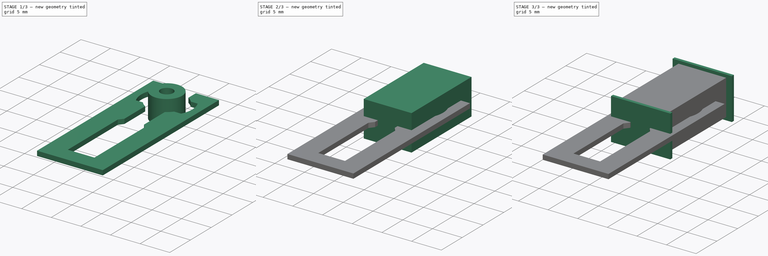
[diagram: build sequence overview — one tinted view per stage of 3, left to right]
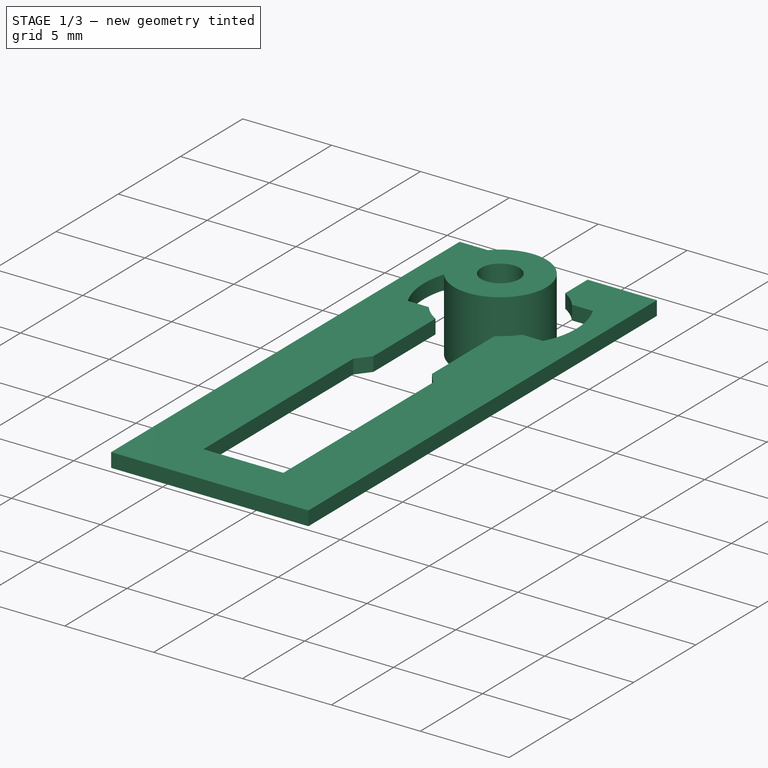
[diagram: stage 1 of 3 — iso view after this stage's code; geometry added in this stage tinted green]
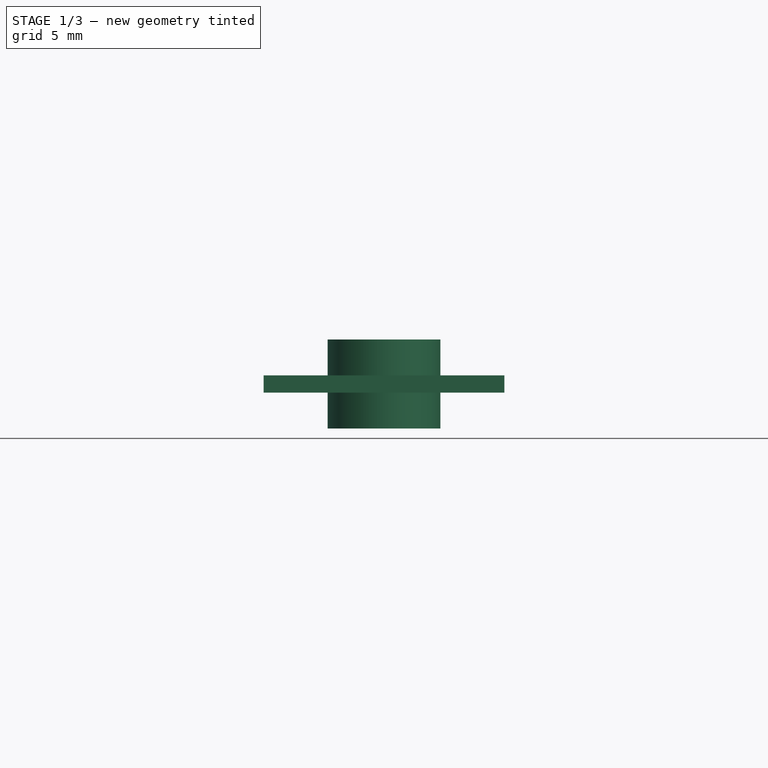
[diagram: stage 1 of 3 — front view after this stage's code; geometry added in this stage tinted green]
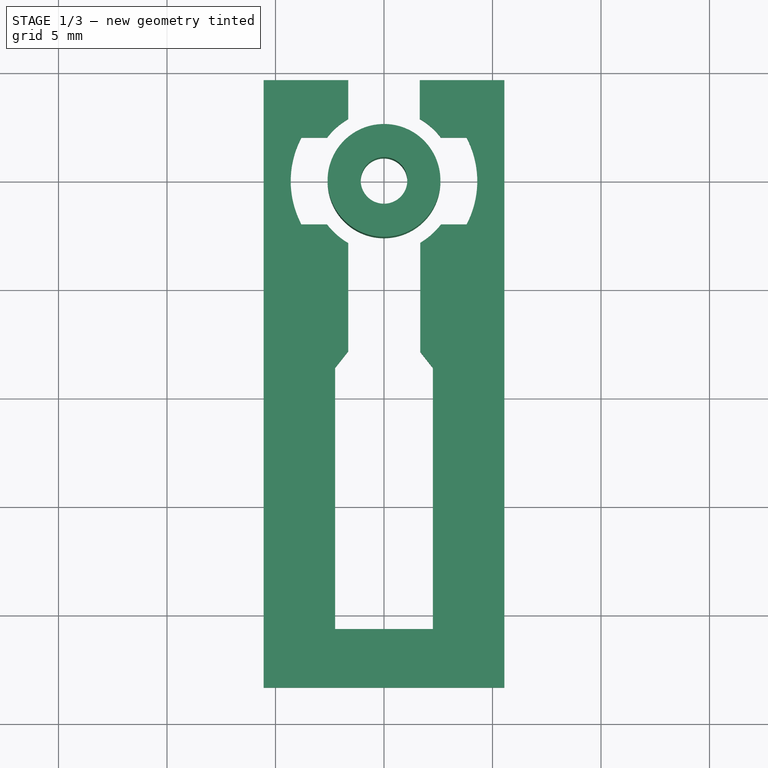
[diagram: stage 1 of 3 — top view after this stage's code; geometry added in this stage tinted green]
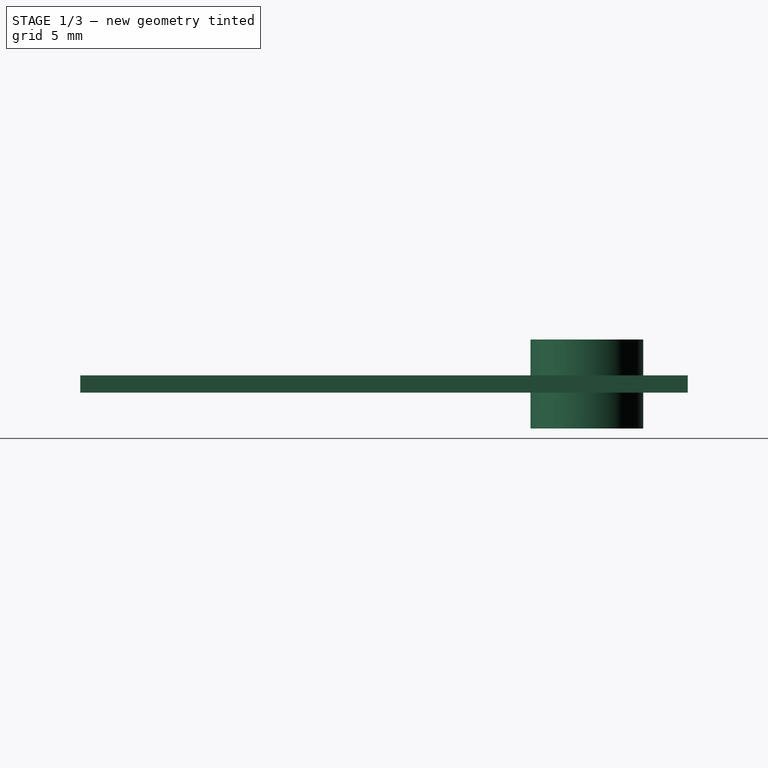
[diagram: stage 1 of 3 — right view after this stage's code; geometry added in this stage tinted green]
FCSTD DOCUMENT  (FreeCAD 0.19R24276 (Git))
Label: Clock Parts_Model_A
License: All rights reserved
LicenseURL: http://en.wikipedia.org/wiki/All_rights_reserved
objects: Sketcher::SketchObject×6, PartDesign::Pad×5, PartDesign::Body×3, Image::ImagePlane×1, App::Part×1
note: 19 computed .brp shape members not serialized (recipe doc carries the construction recipe); baked Part::Feature solids carry a one-line shape summary decoded from their .brp

FEATURE [PartDesign::Body] Body001  label="Coil"
  Group = -> [Sketch001,Pad001,Sketch002,Pad002,Sketch003,Pad003]
  Origin = -> Origin003
  Placement = pos=(3.5,-13,0) rot=(0,0,1;0rad)
  Tip = -> Pad003
FEATURE [Sketcher::SketchObject] Sketch004
  FullyConstrained = true
  MapMode = 5
  Support = -> [XY_Plane005]
  sketch-geometry (2):
    g0: Circle CenterX=0 CenterY=0 CenterZ=0 NormalX=0 NormalY=0 NormalZ=1 AngleXU=0 Radius=1.075
    g1: Circle CenterX=0 CenterY=0 CenterZ=0 NormalX=0 NormalY=0 NormalZ=1 AngleXU=0 Radius=2.6
  constraints (4):
    c: Coincident(g0,g-1)
    c: Coincident(g1,g0)
    c: Radius(g1) = 2.6
    c: Radius(g0) = 1.075
FEATURE [PartDesign::Pad] Pad
  Direction = (1,1,1)
  Length = 0.8
  Length2 = 100
  Midplane = true
  Profile = -> Sketch
  Type = 0
FEATURE [PartDesign::Body] Body  label="Plate"
  Group = -> [Sketch,Pad]
  Origin = -> Origin001
  Tip = -> Pad
FEATURE [PartDesign::Pad] Pad004
  Direction = (1,1,1)
  Length = 4.1
  Length2 = 100
  Midplane = true
  Profile = -> Sketch004
  Type = 0
FEATURE [PartDesign::Body] Body002  label="Magnet"
  Group = -> [Sketch004,Pad004]
  Origin = -> Origin005
  Tip = -> Pad004
FEATURE [App::Part] Part  label="Clock Parts"
  Group = -> [Body,Body001,Body002]
  Origin = -> Origin
FEATURE [Sketcher::SketchObject] Sketch011  label="Actuator_DXF"
  FullyConstrained = false
  sketch-geometry (36):
    g0: ArcOfCircle CenterX=-1.255 CenterY=9.45 CenterZ=0 NormalX=0 NormalY=0 NormalZ=1 AngleXU=0 Radius=3.25 StartAngle=3.80447 EndAngle=4.17988
    g1: ArcOfCircle CenterX=-1.255 CenterY=9.45 CenterZ=0 NormalX=0 NormalY=0 NormalZ=1 AngleXU=0 Radius=3 StartAngle=2.15316 EndAngle=2.41186
    g2: LineSegment StartX=-2.905 StartY=14.05 StartZ=0 EndX=-2.905 EndY=11.9555 EndZ=0
    g3: LineSegment StartX=-3.49107 StartY=11.45 StartZ=0 EndX=-5.06157 EndY=11.45 EndZ=0
    g4: LineSegment StartX=0.395 StartY=14.05 StartZ=0 EndX=0.395 EndY=12.25 EndZ=0
    g5: ArcOfCircle CenterX=-1.255 CenterY=9.45 CenterZ=0 NormalX=0 NormalY=0 NormalZ=1 AngleXU=0 Radius=4.3 StartAngle=2.65783 EndAngle=3.62536
    g6: LineSegment StartX=-5.06157 StartY=7.45 StartZ=0 EndX=-3.81674 EndY=7.45 EndZ=0
    g7: LineSegment StartX=-2.905 StartY=1.32754 StartZ=0 EndX=-3.405 EndY=0.716888 EndZ=0
    g8: LineSegment StartX=-3.405 StartY=0.716888 StartZ=0 EndX=-3.405 EndY=-11.161 EndZ=0
    g9: LineSegment StartX=-3.405 StartY=-11.161 StartZ=0 EndX=0.895 EndY=-11.161 EndZ=0
    g10: LineSegment StartX=0.895 StartY=-11.161 StartZ=0 EndX=0.895 EndY=0.716888 EndZ=0
    g11: LineSegment StartX=0.895 StartY=0.716888 StartZ=0 EndX=0.395 EndY=1.32754 EndZ=0
    g12: LineSegment StartX=0.395 StartY=1.32754 StartZ=0 EndX=0.395 EndY=6.94451 EndZ=0
    g13: LineSegment StartX=0.981068 StartY=7.45 StartZ=0 EndX=2.55157 EndY=7.45 EndZ=0
    g14: LineSegment StartX=0.395 StartY=14.05 StartZ=0 EndX=4.295 EndY=14.05 EndZ=0
    g15: LineSegment StartX=4.295 StartY=14.05 StartZ=0 EndX=4.295 EndY=-13.8452 EndZ=0
    g16: LineSegment StartX=4.295 StartY=-13.8452 StartZ=0 EndX=-6.805 EndY=-13.8452 EndZ=0
    g17: LineSegment StartX=-6.805 StartY=-13.8452 StartZ=0 EndX=-6.805 EndY=14.05 EndZ=0
    g18: LineSegment StartX=-6.805 StartY=14.05 StartZ=0 EndX=-2.905 EndY=14.05 EndZ=0
    g19: ArcOfCircle CenterX=-1.255 CenterY=9.45 CenterZ=0 NormalX=0 NormalY=0 NormalZ=1 AngleXU=0 Radius=3.25 StartAngle=0.662874 EndAngle=1.03829
    g20: ArcOfCircle CenterX=-1.255 CenterY=9.45 CenterZ=0 NormalX=0 NormalY=0 NormalZ=1 AngleXU=0 Radius=3 StartAngle=5.29475 EndAngle=5.55346
    g21: LineSegment StartX=1.30674 StartY=11.45 StartZ=0 EndX=2.55157 EndY=11.45 EndZ=0
    g22: ArcOfCircle CenterX=-1.255 CenterY=9.45 CenterZ=0 NormalX=0 NormalY=0 NormalZ=1 AngleXU=0 Radius=4.3 StartAngle=5.79942 EndAngle=6.76695
    g23: LineSegment StartX=-2.905 StartY=6.65 StartZ=0 EndX=-2.905 EndY=1.32754 EndZ=0
    g24: Circle CenterX=-1.255 CenterY=9.45 CenterZ=0 NormalX=0 NormalY=0 NormalZ=1 AngleXU=0 Radius=1.1
    g25: Circle CenterX=-1.255 CenterY=9.45 CenterZ=0 NormalX=0 NormalY=0 NormalZ=1 AngleXU=0 Radius=2.6
    g26: LineSegment StartX=4.75434 StartY=4.3 StartZ=0 EndX=6.75434 EndY=4.3 EndZ=0
    g27: LineSegment StartX=6.75434 StartY=4.3 StartZ=0 EndX=6.75434 EndY=-10 EndZ=0
    g28: LineSegment StartX=6.75434 StartY=-10 StartZ=0 EndX=4.75434 EndY=-10 EndZ=0
    g29: LineSegment StartX=4.75434 StartY=-10 StartZ=0 EndX=4.75434 EndY=4.3 EndZ=0
    g30: LineSegment StartX=0 StartY=4.3 StartZ=0 EndX=-2 EndY=4.3 EndZ=0
    g31: LineSegment StartX=-2 StartY=4.3 StartZ=0 EndX=-2 EndY=-10 EndZ=0
    g32: LineSegment StartX=-2 StartY=-10 StartZ=0 EndX=0 EndY=-10 EndZ=0
    g33: LineSegment StartX=0 StartY=-10 StartZ=0 EndX=0 EndY=4.3 EndZ=0
    g34: LineSegment StartX=-1.255 StartY=9.45 StartZ=0 EndX=-5.03131 EndY=9.45 EndZ=0
    g35: LineSegment StartX=-1.255 StartY=9.45 StartZ=0 EndX=-1.255 EndY=5.79474 EndZ=0
  constraints (78):
    c: DistanceX(g0) = -1.255
    c: DistanceY(g0) = 9.45
    c: Radius(g0) = 3.25
    c: Coincident(g1,g0)
    c: Radius(g1) = 3
    c: Vertical(g2)
    c: Horizontal(g3)
    c: Vertical(g4)
    c: Coincident(g5,g0)
    c: Radius(g5) = 4.3
    c: Horizontal(g6)
    c: Coincident(g23,g7)
    c: Coincident(g7,g8)
    c: Vertical(g8)
    c: Coincident(g8,g9)
    c: Horizontal(g9)
    c: Coincident(g9,g10)
    c: Vertical(g10)
    c: Coincident(g10,g11)
    c: Coincident(g11,g12)
    c: Vertical(g12)
    c: Horizontal(g13)
    c: Coincident(g4,g14)
    c: Horizontal(g14)
    c: Coincident(g14,g15)
    c: Vertical(g15)
    c: Coincident(g15,g16)
    c: Horizontal(g16)
    c: Coincident(g16,g17)
    c: Vertical(g17)
    c: Coincident(g17,g18)
    c: Coincident(g18,g2)
    c: Horizontal(g18)
    c: Equal(g14,g18)
    c: DistanceX(g14,g14) = 3.9
    c: DistanceX(g9,g9) = 4.3
    c: Coincident(g3,g5)
    c: Equal(g0,g19)
    c: Coincident(g0,g19)
    c: Coincident(g21,g19)
    c: Coincident(g4,g19)
    c: Coincident(g2,g1)
    c: Coincident(g3,g1)
    c: Coincident(g6,g0)
    c: Coincident(g5,g6)
    c: Coincident(g13,g20)
    c: Coincident(g12,g20)
    c: Coincident(g23,g0)
    c: Coincident(g13,g22)
    c: Coincident(g22,g21)
    c: Coincident(g24,g0)
    c: Coincident(g25,g0)
    c: Radius(g25) = 2.6
    c: Radius(g24) = 1.1
    c: Coincident(g26,g27)
    c: Coincident(g27,g28)
    c: Coincident(g28,g29)
    c: Coincident(g29,g26)
    c: Horizontal(g26)
    c: Horizontal(g28)
    c: Vertical(g27)
    c: Vertical(g29)
    c: Coincident(g30,g31)
    c: Coincident(g31,g32)
    c: Coincident(g32,g33)
    c: Coincident(g33,g30)
    c: Horizontal(g30)
    c: Horizontal(g32)
    c: Vertical(g31)
    c: Vertical(g33)
    c: Equal(g26,g30)
    c: Equal(g27,g33)
    c: DistanceY(g-1,g26) = 4.3
    c: DistanceY(g-1,g30) = 4.3
    c: DistanceY(g27,g27) = 14.3
    c: DistanceX(g28,g28) = 2
    c: Horizontal(g34)
    c: Vertical(g35)
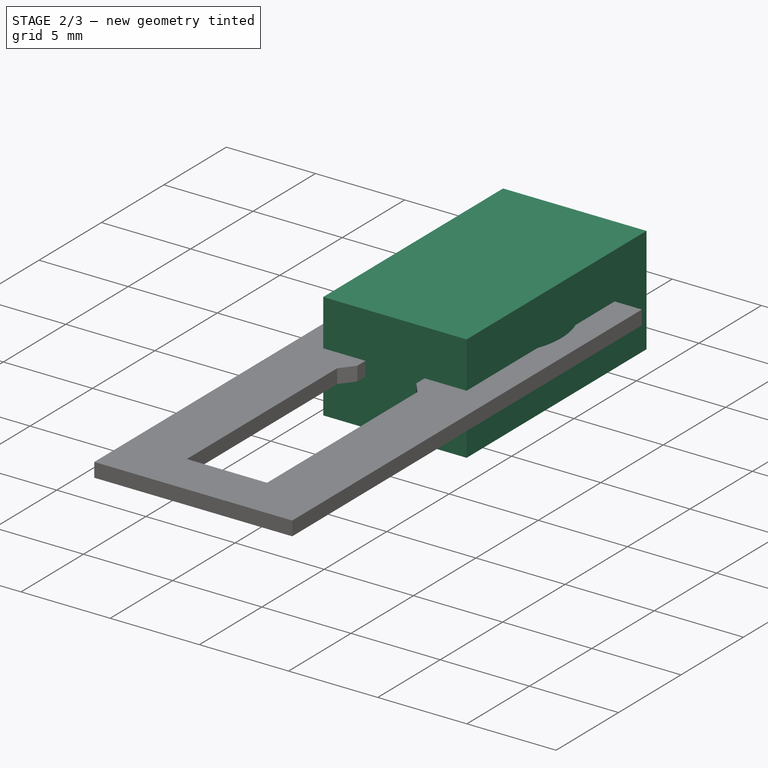
[diagram: stage 2 of 3 — iso view after this stage's code; geometry added in this stage tinted green]
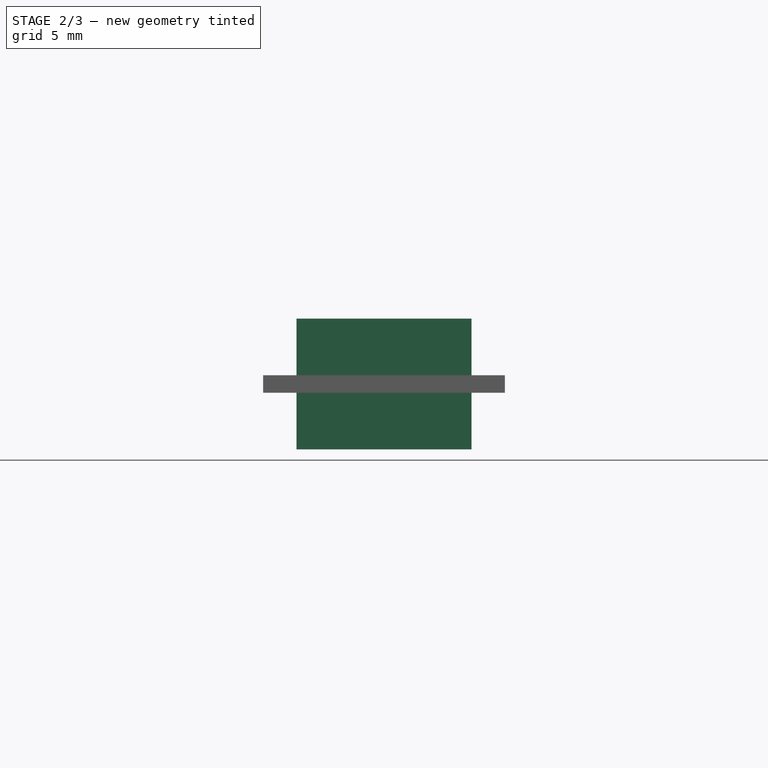
[diagram: stage 2 of 3 — front view after this stage's code; geometry added in this stage tinted green]
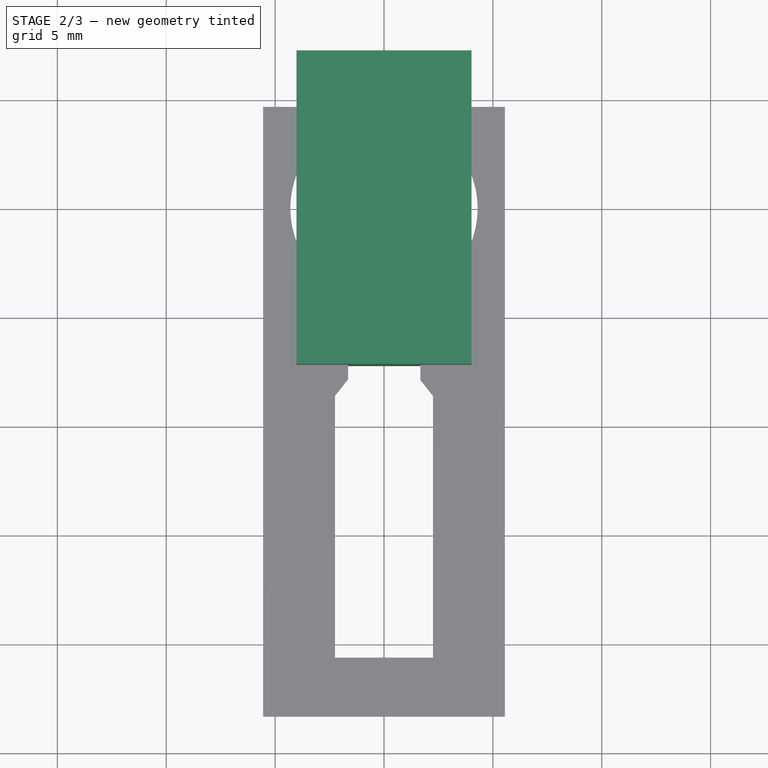
[diagram: stage 2 of 3 — top view after this stage's code; geometry added in this stage tinted green]
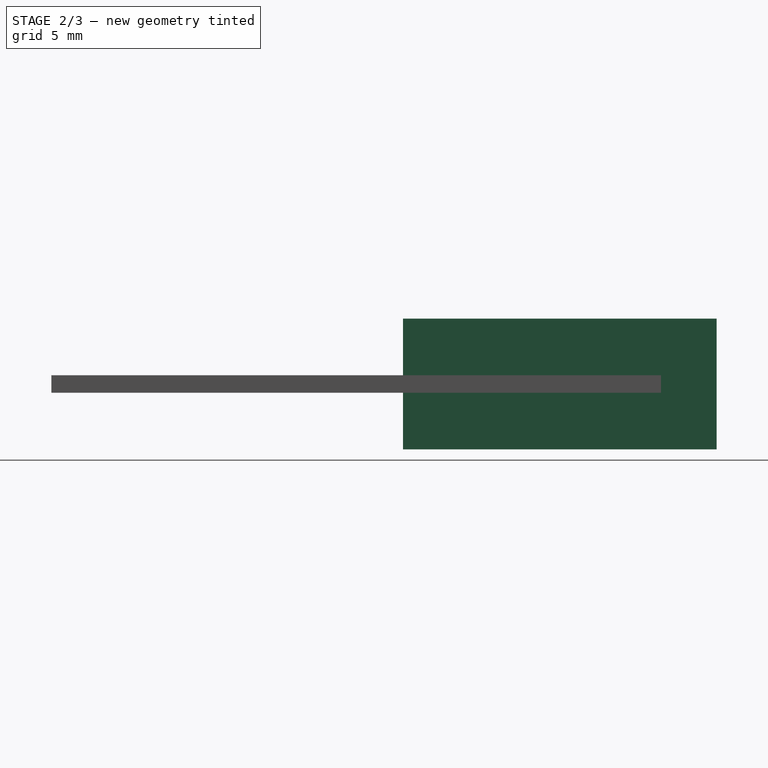
[diagram: stage 2 of 3 — right view after this stage's code; geometry added in this stage tinted green]
FEATURE [Sketcher::SketchObject] Sketch
  FullyConstrained = false
  MapMode = 5
  Support = -> [XY_Plane001]
  sketch-geometry (24):
    g0: LineSegment StartX=5.55 StartY=4.65 StartZ=0 EndX=5.55 EndY=-23.35 EndZ=0
    g1: LineSegment StartX=5.55 StartY=-23.35 StartZ=0 EndX=-5.55 EndY=-23.35 EndZ=0
    g2: LineSegment StartX=-5.55 StartY=-23.35 StartZ=0 EndX=-5.55 EndY=4.65 EndZ=0
    g3: LineSegment StartX=-5.55 StartY=4.65 StartZ=0 EndX=-1.65 EndY=4.65 EndZ=0
    g4: LineSegment StartX=-1.65 StartY=4.65 StartZ=0 EndX=-1.65 EndY=2.85788 EndZ=0
    g5: LineSegment StartX=-1.65 StartY=-7.8506 StartZ=0 EndX=-2.25 EndY=-8.61046 EndZ=0
    g6: LineSegment StartX=-2.25 StartY=-8.61046 StartZ=0 EndX=-2.25 EndY=-20.65 EndZ=0
    g7: LineSegment StartX=-2.25 StartY=-20.65 StartZ=0 EndX=2.25 EndY=-20.65 EndZ=0
    g8: LineSegment StartX=1.66888 StartY=-7.87451 StartZ=0 EndX=1.66888 EndY=-2.8469 EndZ=0
    g9: LineSegment StartX=1.65 StartY=4.65 StartZ=0 EndX=5.55 EndY=4.65 EndZ=0
    g10: ArcOfCircle CenterX=1.08e-13 CenterY=0 CenterZ=0 NormalX=0 NormalY=0 NormalZ=1 AngleXU=0 Radius=3.3 StartAngle=2.0944 EndAngle=2.49049
    g11: ArcOfCircle CenterX=1.08e-13 CenterY=0 CenterZ=0 NormalX=0 NormalY=0 NormalZ=1 AngleXU=0 Radius=4.3 StartAngle=2.65783 EndAngle=3.62536
    g12: LineSegment StartX=-3.80657 StartY=2 StartZ=0 EndX=-2.62488 EndY=2 EndZ=0
    g13: LineSegment StartX=-3.80657 StartY=-2 StartZ=0 EndX=-2.62488 EndY=-2 EndZ=0
    g14: LineSegment StartX=2.62488 StartY=2 StartZ=0 EndX=3.80488 EndY=2 EndZ=0
    g15: ArcOfCircle CenterX=1.08e-13 CenterY=0 CenterZ=0 NormalX=0 NormalY=0 NormalZ=1 AngleXU=0 Radius=3.3 StartAngle=3.79269 EndAngle=4.18879
    g16: ArcOfCircle CenterX=1.116e-13 CenterY=-4.3e-15 CenterZ=0 NormalX=0 NormalY=0 NormalZ=1 AngleXU=0 Radius=3.3 StartAngle=0.651099 EndAngle=1.0472
    g17: LineSegment StartX=2.62488 StartY=-2 StartZ=0 EndX=3.80657 EndY=-2 EndZ=0
    g18: ArcOfCircle CenterX=4.4e-15 CenterY=-0.00161011 CenterZ=0 NormalX=0 NormalY=0 NormalZ=1 AngleXU=0 Radius=4.29925 StartAngle=5.79975 EndAngle=6.76747
    g19: LineSegment StartX=1.65 StartY=2.85788 StartZ=0 EndX=1.65 EndY=4.65 EndZ=0
    g20: LineSegment StartX=-1.65 StartY=-2.85788 StartZ=0 EndX=-1.65 EndY=-7.8506 EndZ=0
    g21: ArcOfCircle CenterX=5.4e-14 CenterY=-1.08e-13 CenterZ=0 NormalX=0 NormalY=0 NormalZ=1 AngleXU=0 Radius=3.3 StartAngle=5.24261 EndAngle=5.63209
    g22: LineSegment StartX=2.25 StartY=-8.61046 StartZ=0 EndX=2.25 EndY=-20.65 EndZ=0
    g23: LineSegment StartX=1.66888 StartY=-7.87451 StartZ=0 EndX=2.25 EndY=-8.61046 EndZ=0
  constraints (57):
    c: Vertical(g0)
    c: Coincident(g0,g1)
    c: Horizontal(g1)
    c: Coincident(g1,g2)
    c: Vertical(g2)
    c: Coincident(g2,g3)
    c: Horizontal(g3)
    c: Coincident(g3,g4)
    c: Vertical(g4)
    c: Coincident(g20,g5)
    c: Coincident(g5,g6)
    c: Vertical(g6)
    c: Coincident(g6,g7)
    c: Coincident(g19,g9)
    c: Coincident(g9,g0)
    c: Coincident(g11,g10)
    c: Radius(g10) = 3.3
    c: Radius(g11) = 4.3
    c: Horizontal(g12)
    c: Horizontal(g13)
    c: PointOnObject(g14,g10)
    c: Coincident(g18,g14)
    c: Coincident(g11,g12)
    c: Equal(g10,g15)
    c: Coincident(g10,g12)
    c: Coincident(g10,g15)
    c: Equal(g15,g16)
    c: PointOnObject(g21,g13)
    c: Symmetric(g0,g2,g-2)
    c: Coincident(g23,g22)
    c: Vertical(g22)
    c: Coincident(g22,g7)
    c: Symmetric(g7,g6,g-2)
    c: DistanceX(g0) = 5.55
    c: DistanceY(g0) = -23.35
    c: Vertical(g19)
    c: Horizontal(g17)
    c: Horizontal(g14)
    c: Vertical(g8)
    c: Vertical(g20)
    c: Symmetric(g3,g9,g-2)
    c: DistanceX(g9) = 1.65
    c: DistanceY(g9) = 4.65
    c: DistanceX(g7) = 2.25
    c: DistanceY(g7) = -20.65
    c: Coincident(g10,g4)
    c: Coincident(g16,g19)
    c: Coincident(g14,g16)
    c: Coincident(g17,g18)
    c: Coincident(g11,g13)
    c: Coincident(g13,g15)
    c: Coincident(g17,g21)
    c: Coincident(g8,g21)
    c: Coincident(g15,g20)
    c: Symmetric(g14,g17,g-1)
    c: Symmetric(g10,g13,g-1)
    c: Coincident(g8,g23)
FEATURE [Image::ImagePlane] ImagePlane
  Placement = pos=(1.28,-9.48,0) rot=(0,0,1;0rad)
  XSize = 16.5064
  YSize = 28.9621
FEATURE [Sketcher::SketchObject] Sketch001
  FullyConstrained = true
  MapMode = 5
  Support = -> [XY_Plane003]
  sketch-geometry (4):
    g0: LineSegment StartX=-4.02 StartY=7.2 StartZ=0 EndX=4.02 EndY=7.2 EndZ=0
    g1: LineSegment StartX=4.02 StartY=7.2 StartZ=0 EndX=4.02 EndY=-7.2 EndZ=0
    g2: LineSegment StartX=4.02 StartY=-7.2 StartZ=0 EndX=-4.02 EndY=-7.2 EndZ=0
    g3: LineSegment StartX=-4.02 StartY=-7.2 StartZ=0 EndX=-4.02 EndY=7.2 EndZ=0
  constraints (10):
    c: Coincident(g0,g1)
    c: Coincident(g1,g2)
    c: Coincident(g2,g3)
    c: Coincident(g3,g0)
    c: Horizontal(g0)
    c: Vertical(g3)
    c: DistanceY(g1,g1) = 14.4
    c: DistanceX(g2,g2) = 8.04
    c: Symmetric(g1,g2,g-2)
    c: Symmetric(g1,g0,g-1)
FEATURE [PartDesign::Pad] Pad001
  Direction = (1,1,1)
  Length = 6
  Length2 = 100
  Midplane = true
  Profile = -> Sketch001
  Type = 0
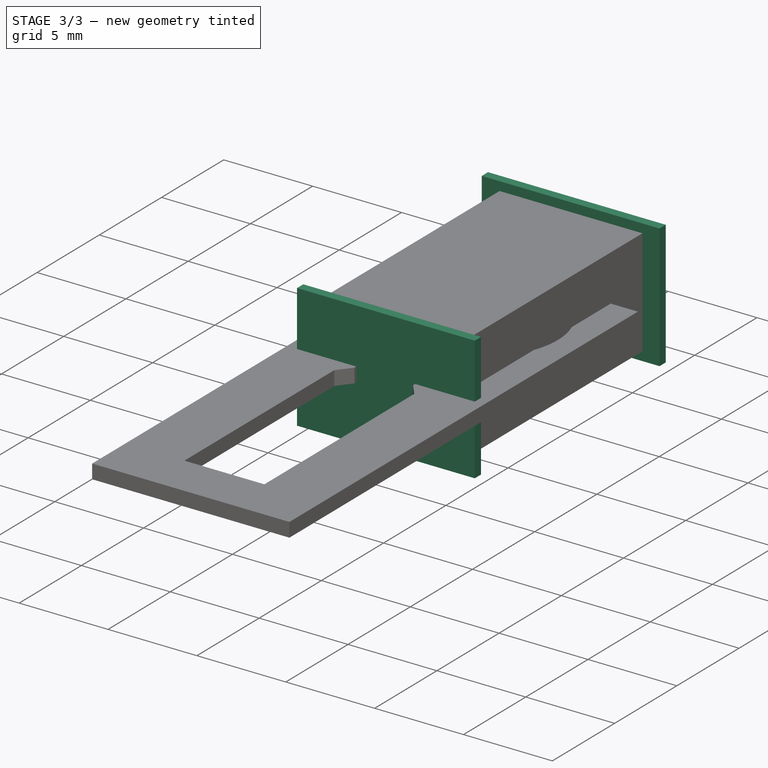
[diagram: stage 3 of 3 — iso view after this stage's code; geometry added in this stage tinted green]
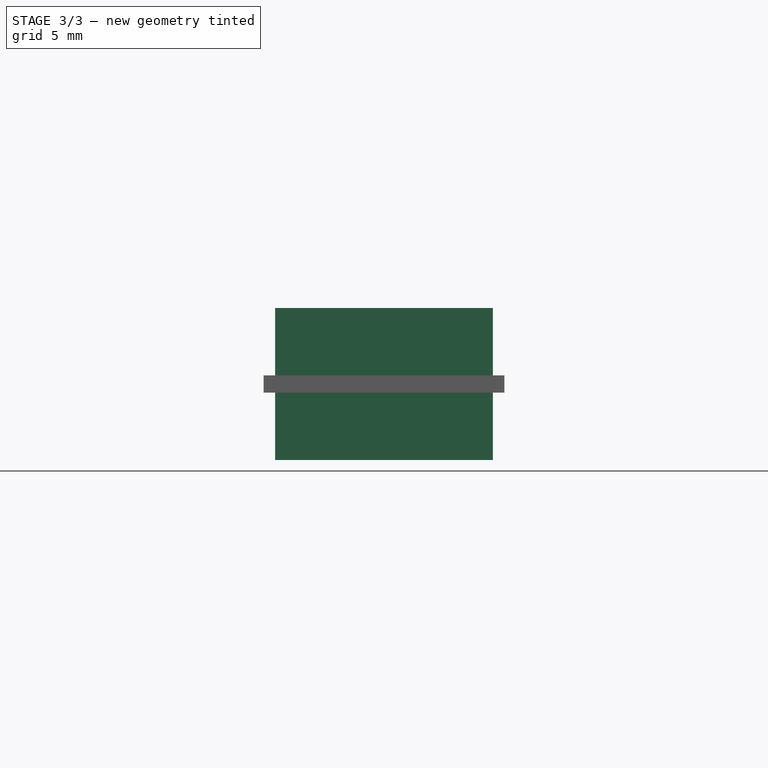
[diagram: stage 3 of 3 — front view after this stage's code; geometry added in this stage tinted green]
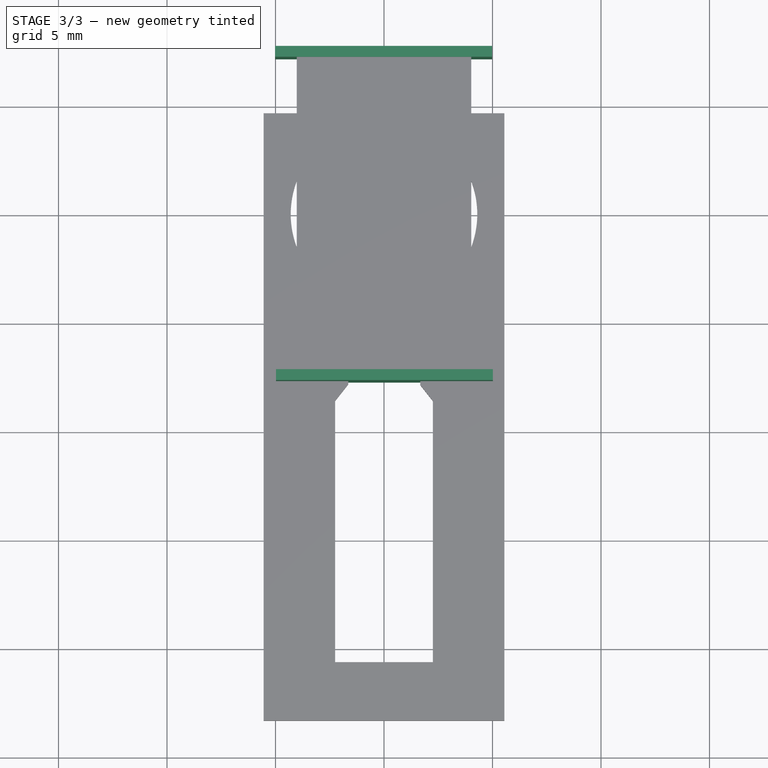
[diagram: stage 3 of 3 — top view after this stage's code; geometry added in this stage tinted green]
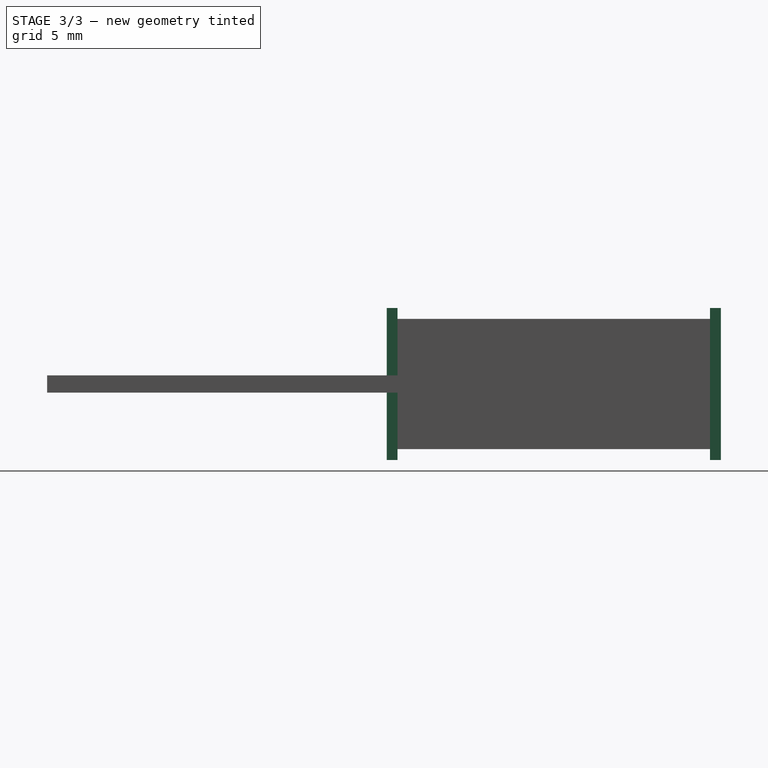
[diagram: stage 3 of 3 — right view after this stage's code; geometry added in this stage tinted green]
FEATURE [Sketcher::SketchObject] Sketch002
  ExternalGeometry = -> [Pad001]
  FullyConstrained = true
  MapMode = 5
  Placement = pos=(0,-7.2,0) rot=(1,0,0;1.5708rad)
  Support = -> [Pad001]
  sketch-geometry (4):
    g0: LineSegment StartX=-4.98 StartY=3.5 StartZ=0 EndX=5.02 EndY=3.5 EndZ=0
    g1: LineSegment StartX=5.02 StartY=3.5 StartZ=0 EndX=5.02 EndY=-3.5 EndZ=0
    g2: LineSegment StartX=5.02 StartY=-3.5 StartZ=0 EndX=-4.98 EndY=-3.5 EndZ=0
    g3: LineSegment StartX=-4.98 StartY=-3.5 StartZ=0 EndX=-4.98 EndY=3.5 EndZ=0
  constraints (12):
    c: Coincident(g0,g1)
    c: Coincident(g1,g2)
    c: Coincident(g2,g3)
    c: Coincident(g3,g0)
    c: Horizontal(g0)
    c: Horizontal(g2)
    c: Vertical(g1)
    c: Vertical(g3)
    c: DistanceX(g-5,g1) = 1
    c: DistanceY(g-5,g1) = -0.5
    c: DistanceY(g1,g1) = 7
    c: DistanceX(g2,g2) = 10
FEATURE [PartDesign::Pad] Pad002
  BaseFeature = -> Pad001
  Direction = (1,1,1)
  Length = 0.5
  Length2 = 100
  Profile = -> Sketch002
  Type = 0
FEATURE [Sketcher::SketchObject] Sketch003
  ExternalGeometry = -> [Pad002]
  FullyConstrained = true
  MapMode = 5
  Placement = pos=(0,7.2,0) rot=(0,0.707107,0.707107;3.14159rad)
  Support = -> [Pad002]
  sketch-geometry (4):
    g0: LineSegment StartX=-4.98 StartY=3.5 StartZ=0 EndX=5.02 EndY=3.5 EndZ=0
    g1: LineSegment StartX=5.02 StartY=3.5 StartZ=0 EndX=5.02 EndY=-3.5 EndZ=0
    g2: LineSegment StartX=5.02 StartY=-3.5 StartZ=0 EndX=-4.98 EndY=-3.5 EndZ=0
    g3: LineSegment StartX=-4.98 StartY=-3.5 StartZ=0 EndX=-4.98 EndY=3.5 EndZ=0
  constraints (12):
    c: Coincident(g0,g1)
    c: Coincident(g1,g2)
    c: Coincident(g2,g3)
    c: Coincident(g3,g0)
    c: Horizontal(g0)
    c: Horizontal(g2)
    c: Vertical(g1)
    c: Vertical(g3)
    c: DistanceX(g-3,g1) = 1
    c: DistanceY(g-3,g1) = -0.5
    c: DistanceY(g3,g3) = 7
    c: DistanceX(g2,g2) = 10
FEATURE [PartDesign::Pad] Pad003
  BaseFeature = -> Pad002
  Direction = (1,1,1)
  Length = 0.5
  Length2 = 100
  Profile = -> Sketch003
  Type = 0
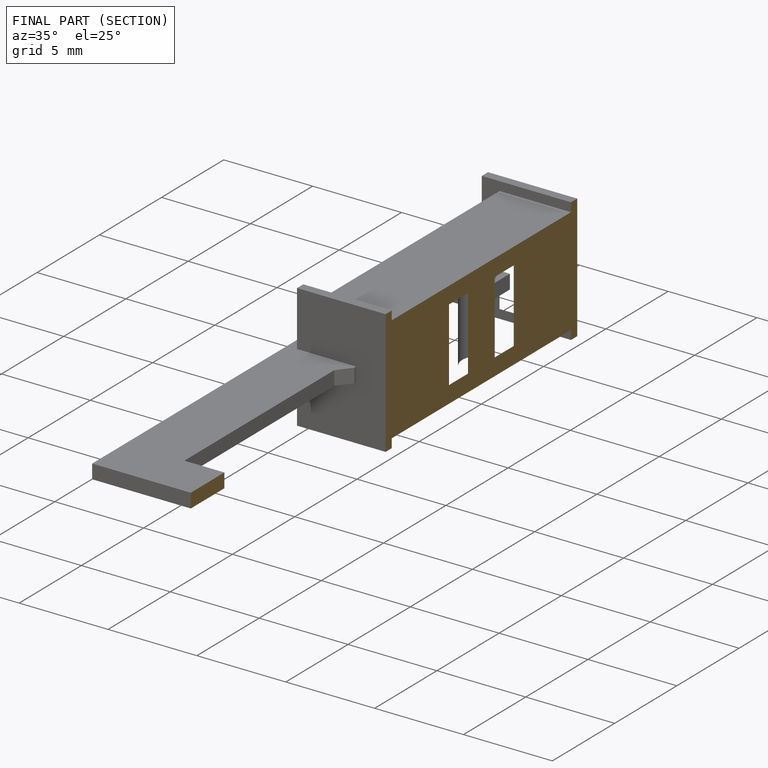
[diagram: finished part — half-section view (interior)]
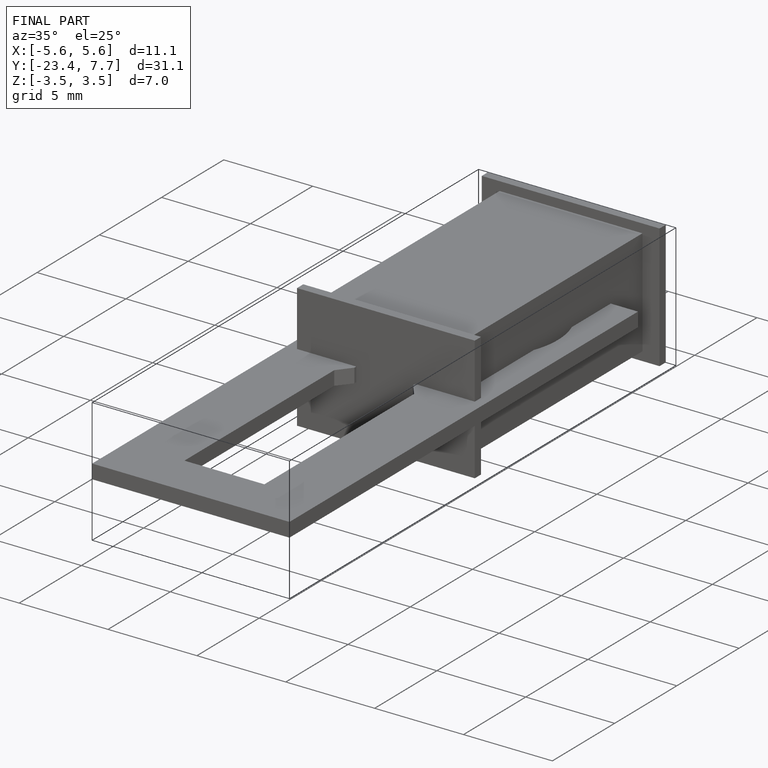
[diagram: finished part — iso view with bounding-box wireframe]
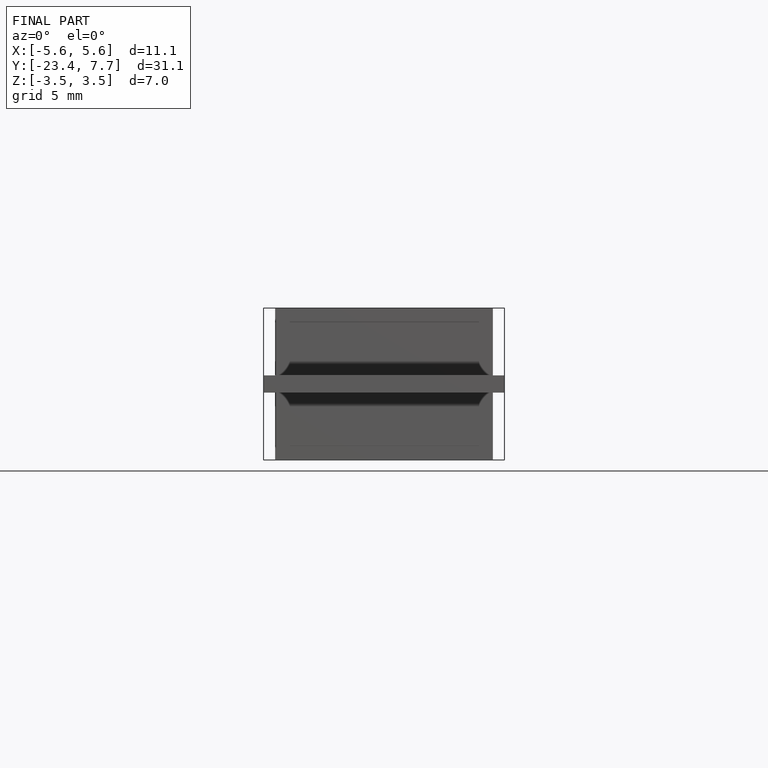
[diagram: finished part — front view with bounding-box wireframe]
